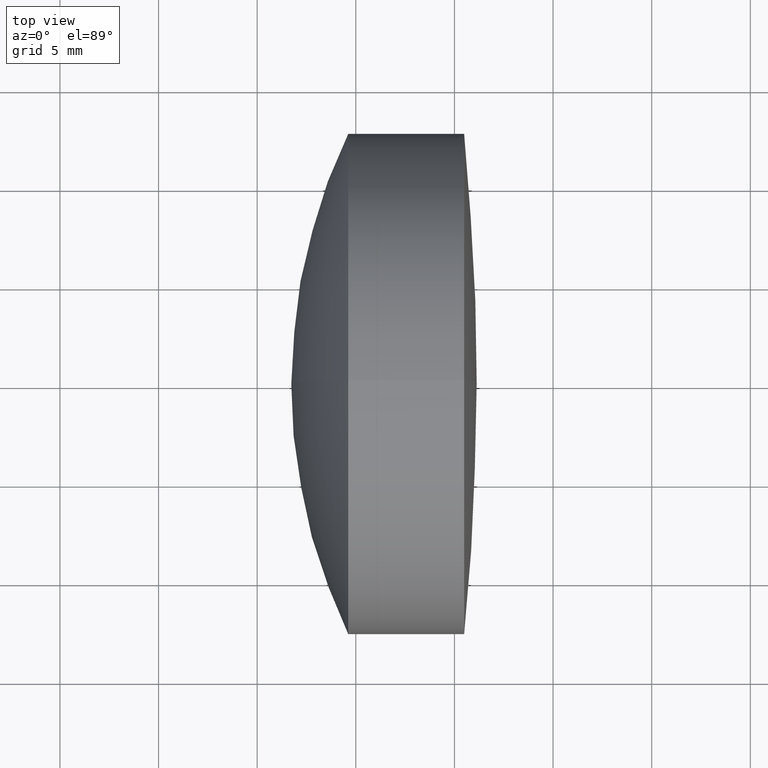
[diagram: clean part render]
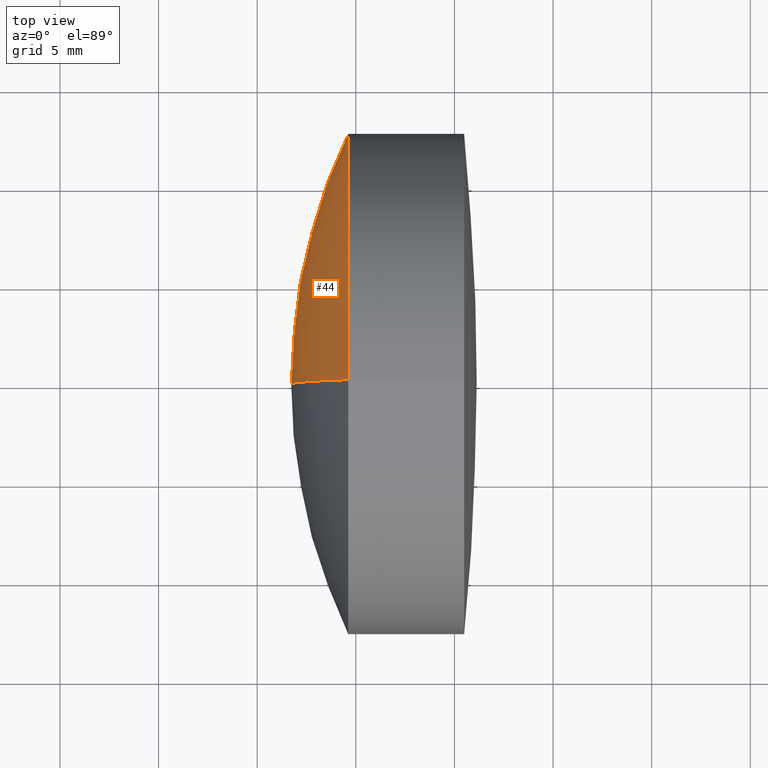
[diagram: same view with one face highlighted and labeled with its STEP entity id]
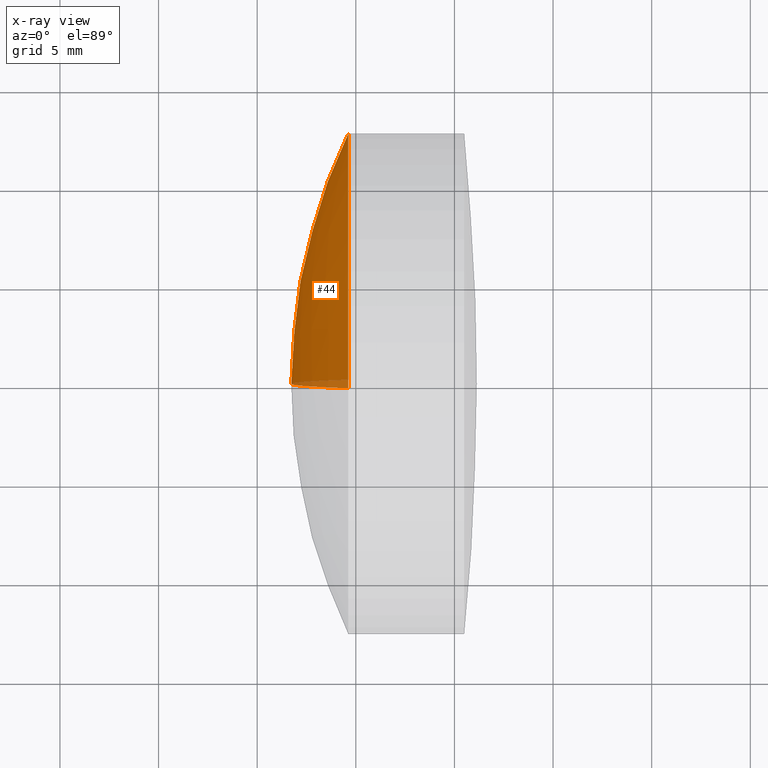
[diagram: x-ray of the same camera — body ghosted, the highlighted face saturated]
A machine part, top view. The second image highlights one B-rep face of the part: STEP entity #44.
The next image is the same camera in x-ray: the body ghosted, the highlighted face saturated — about 3% of this face is hidden behind the body in this view.
In plain terms, the highlighted spherical surface has radius 29.38 mm.
Its self-contained STEP definition (entity closure, byte-faithful):
#7 = CARTESIAN_POINT ( 'NONE',  ( 311.1089865545652100, 0.0000000000000000000, 8.126185643377277200E-015 ) ) ;
#8 = AXIS2_PLACEMENT_3D ( 'NONE', #7, #26, #216 ) ;
#13 = CIRCLE ( 'NONE', #8, 29.38000000000002700 ) ;
#26 = DIRECTION ( 'NONE',  ( 0.0000000000000000000, -1.000000000000000000, -1.224646799147353200E-016 ) ) ;
#39 = EDGE_CURVE ( 'NONE', #215, #292, #150, .T. ) ;
#42 = CIRCLE ( 'NONE', #127, 29.38000000000002700 ) ;
#44 = ADVANCED_FACE ( 'NONE', ( #139 ), #137, .T. ) ;
#45 = CARTESIAN_POINT ( 'NONE',  ( 284.6156968381105800, -1.555301434917138400E-015, 12.70000000000000600 ) ) ;
#75 = DIRECTION ( 'NONE',  ( 0.0000000000000000000, 0.0000000000000000000, 1.000000000000000000 ) ) ;
#126 = ORIENTED_EDGE ( 'NONE', *, *, #176, .T. ) ;
#127 = AXIS2_PLACEMENT_3D ( 'NONE', #249, #221, #223 ) ;
#132 = CARTESIAN_POINT ( 'NONE',  ( 281.7289865545652100, 0.0000000000000000000, 6.327179495429814500E-015 ) ) ;
#135 = CARTESIAN_POINT ( 'NONE',  ( 284.6156968381105800, 0.0000000000000000000, -12.69999999999999900 ) ) ;
#137 = SPHERICAL_SURFACE ( 'NONE', #257, 29.38000000000002700 ) ;
#139 = FACE_OUTER_BOUND ( 'NONE', #317, .T. ) ;
#148 = DIRECTION ( 'NONE',  ( -0.0000000000000000000, -1.000000000000000000, -0.0000000000000000000 ) ) ;
#150 = CIRCLE ( 'NONE', #207, 12.70000000000000600 ) ;
#176 = EDGE_CURVE ( 'NONE', #292, #183, #42, .T. ) ;
#183 = VERTEX_POINT ( 'NONE', #132 ) ;
#207 = AXIS2_PLACEMENT_3D ( 'NONE', #259, #219, #75 ) ;
#215 = VERTEX_POINT ( 'NONE', #45 ) ;
#216 = DIRECTION ( 'NONE',  ( 0.0000000000000000000, 1.224646799147353200E-016, -1.000000000000000000 ) ) ;
#219 = DIRECTION ( 'NONE',  ( -1.000000000000000000, -0.0000000000000000000, -0.0000000000000000000 ) ) ;
#221 = DIRECTION ( 'NONE',  ( 0.0000000000000000000, 1.000000000000000000, -0.0000000000000000000 ) ) ;
#223 = DIRECTION ( 'NONE',  ( 0.0000000000000000000, 0.0000000000000000000, 1.000000000000000000 ) ) ;
#239 = ORIENTED_EDGE ( 'NONE', *, *, #39, .T. ) ;
#249 = CARTESIAN_POINT ( 'NONE',  ( 311.1089865545652100, 0.0000000000000000000, 8.126185643377277200E-015 ) ) ;
#257 = AXIS2_PLACEMENT_3D ( 'NONE', #278, #148, #329 ) ;
#259 = CARTESIAN_POINT ( 'NONE',  ( 284.6156968381105800, 0.0000000000000000000, 0.0000000000000000000 ) ) ;
#265 = ORIENTED_EDGE ( 'NONE', *, *, #307, .F. ) ;
#278 = CARTESIAN_POINT ( 'NONE',  ( 311.1089865545652100, 0.0000000000000000000, 8.126185643377277200E-015 ) ) ;
#292 = VERTEX_POINT ( 'NONE', #135 ) ;
#307 = EDGE_CURVE ( 'NONE', #215, #183, #13, .T. ) ;
#317 = EDGE_LOOP ( 'NONE', ( #265, #239, #126 ) ) ;
#329 = DIRECTION ( 'NONE',  ( 0.0000000000000000000, 0.0000000000000000000, -1.000000000000000000 ) ) ;